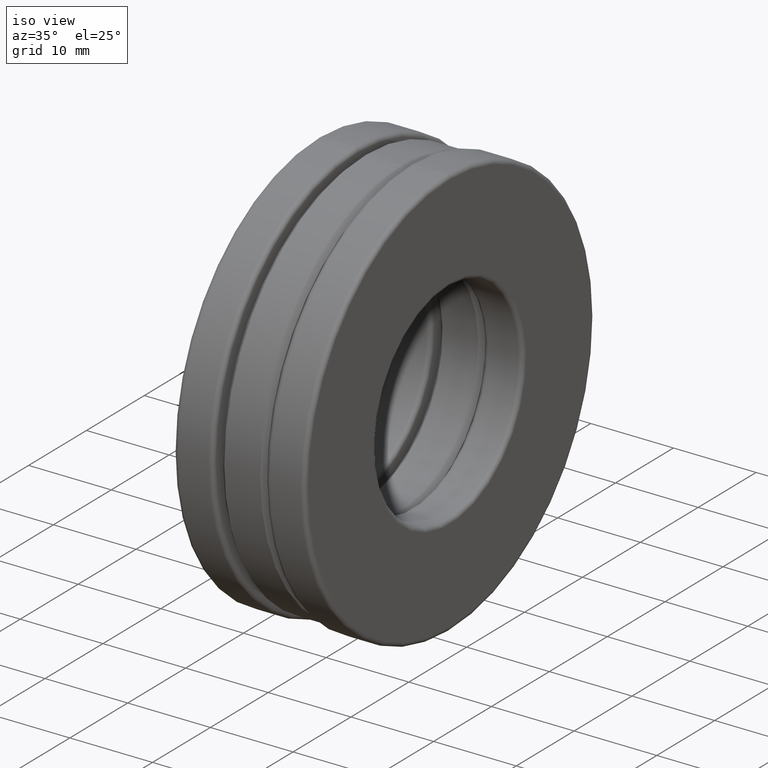
[diagram: clean part render]
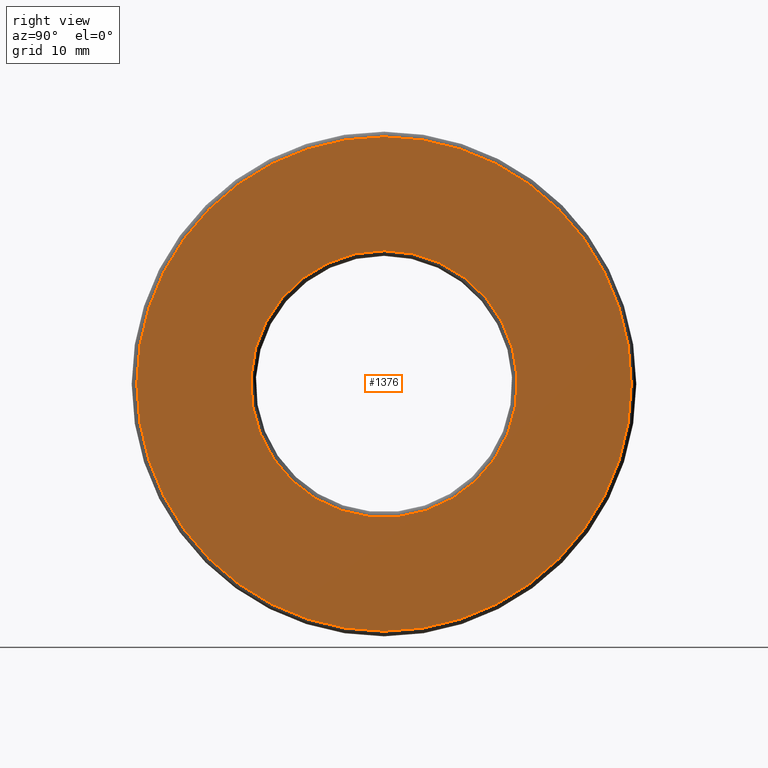
[diagram: tour spotlight — one face highlighted and labeled with its STEP entity id]
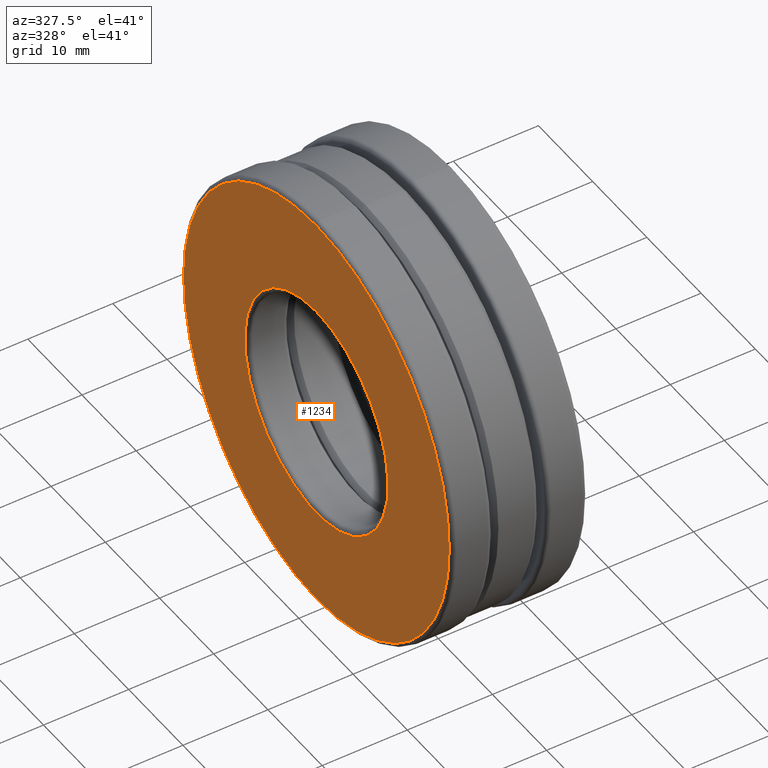
[diagram: tour spotlight — one face highlighted and labeled with its STEP entity id]
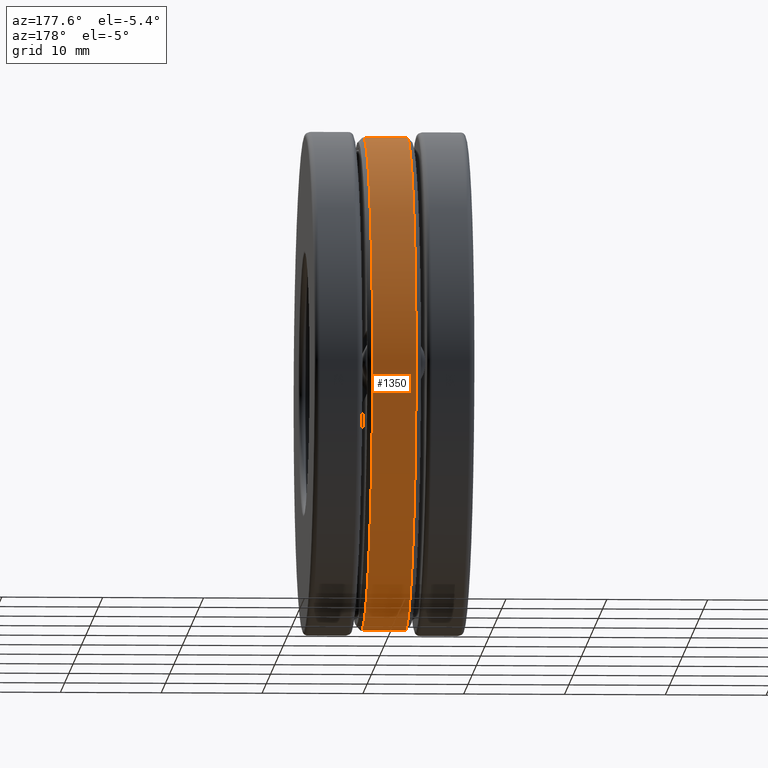
[diagram: tour spotlight — one face highlighted and labeled with its STEP entity id]
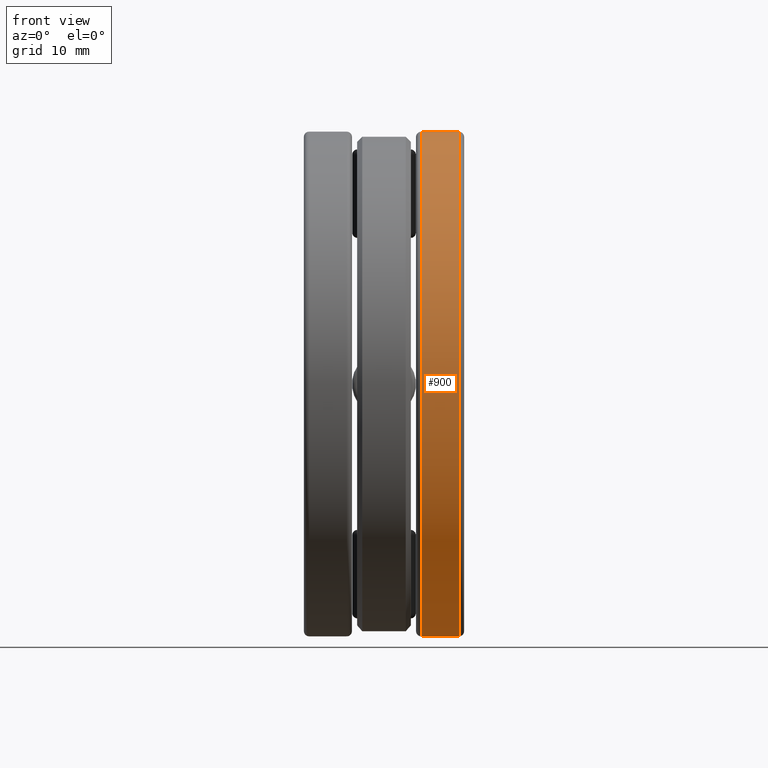
[diagram: tour spotlight — one face highlighted and labeled with its STEP entity id]
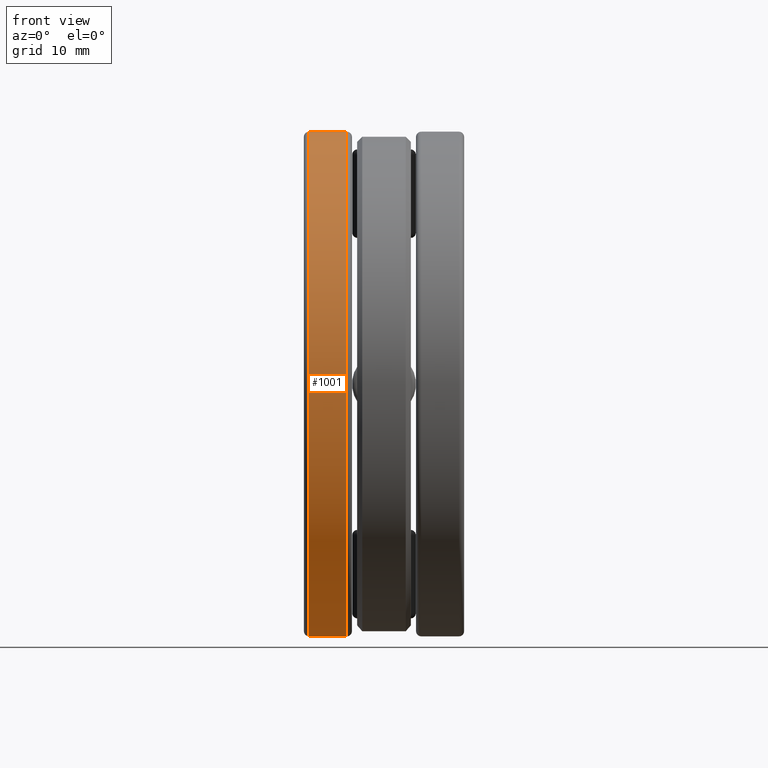
[diagram: tour spotlight — one face highlighted and labeled with its STEP entity id]
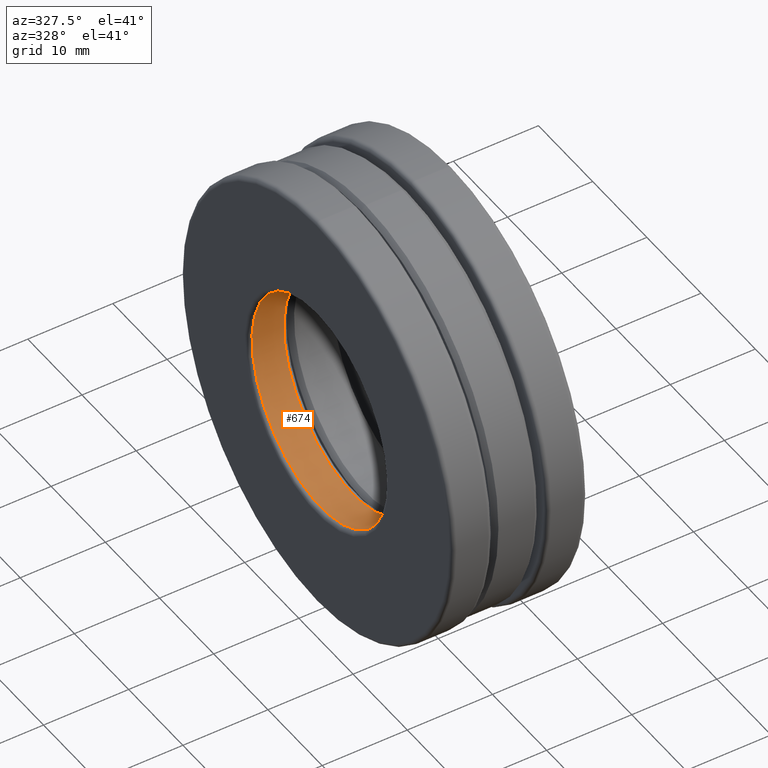
[diagram: tour spotlight — one face highlighted and labeled with its STEP entity id]
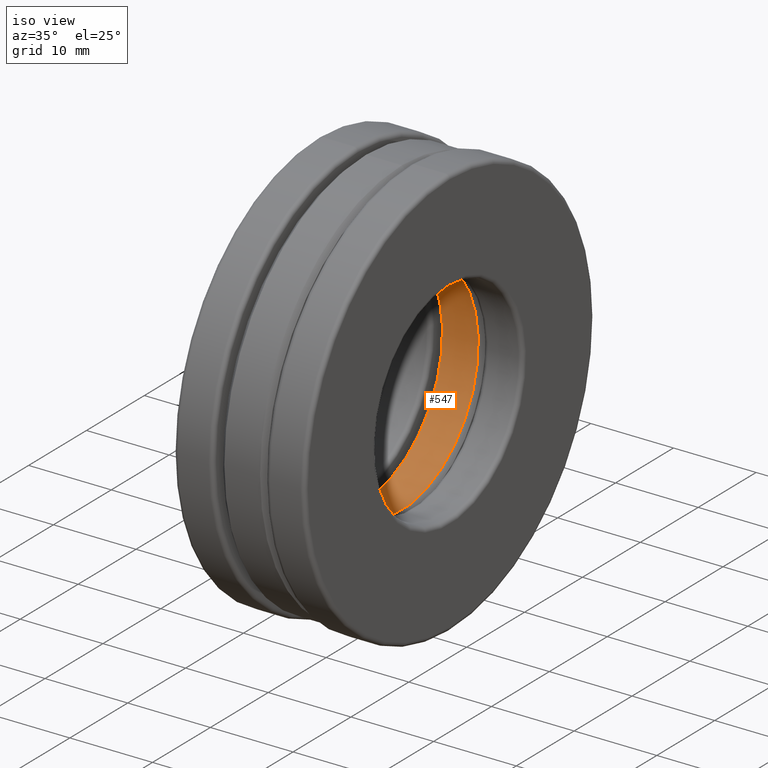
[diagram: tour spotlight — one face highlighted and labeled with its STEP entity id]
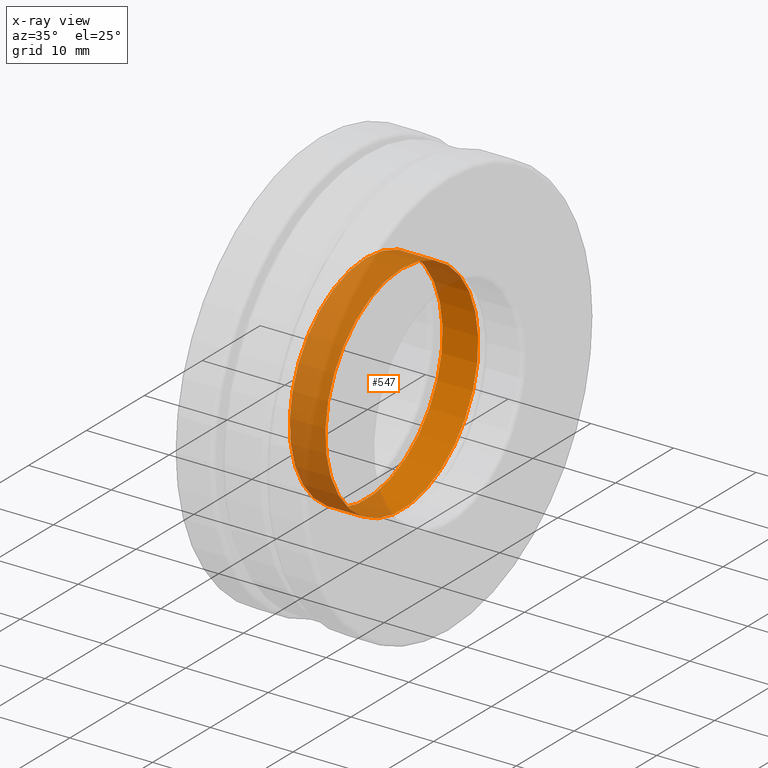
[diagram: x-ray of the same camera — body ghosted, this tour face saturated]
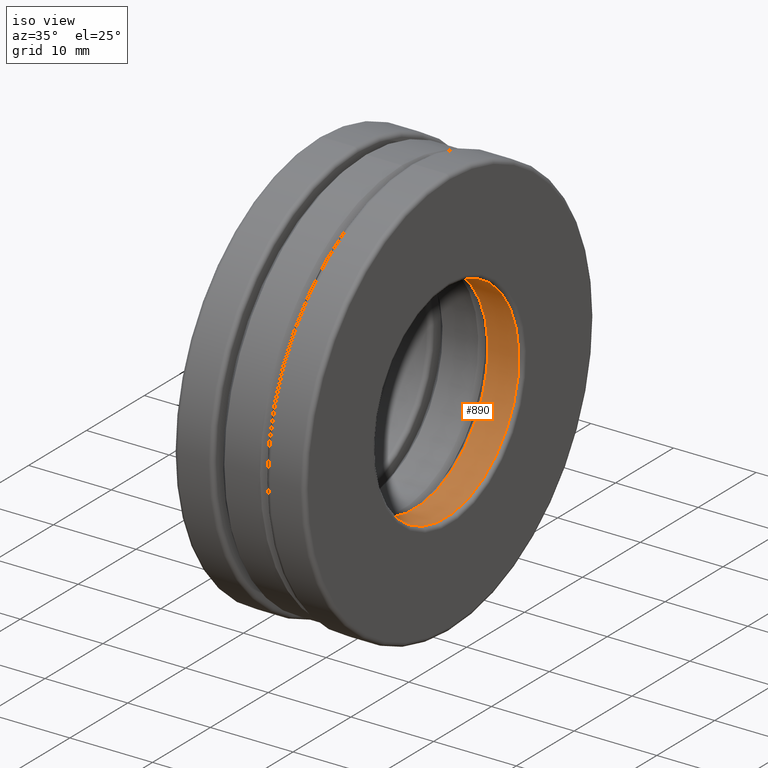
[diagram: tour spotlight — one face highlighted and labeled with its STEP entity id]
A machine part: a face-by-face anatomy tour. The part has 60 B-rep faces; the first image is the clean iso view, then the 8 largest visible faces are spotlighted one at a time (largest first), each with its STEP entity span.

Face 1 — right view, entity #1376. In plain terms, the highlighted planar face has unit normal (1, 0, 0).
Definition (entity closure, byte-faithful):
#46 = EDGE_CURVE ( 'NONE', #1109, #1109, #132, .T. ) ;
#103 = CIRCLE ( 'NONE', #381, 0.9643749999999999800 ) ;
#132 = CIRCLE ( 'NONE', #1355, 0.5199999999999999100 ) ;
#146 = FACE_OUTER_BOUND ( 'NONE', #793, .T. ) ;
#375 = DIRECTION ( 'NONE',  ( 0.0000000000000000000, 0.0000000000000000000, -1.000000000000000000 ) ) ;
#381 = AXIS2_PLACEMENT_3D ( 'NONE', #789, #1347, #677 ) ;
#395 = PLANE ( 'NONE',  #1212 ) ;
#570 = DIRECTION ( 'NONE',  ( -1.000000000000000000, -0.0000000000000000000, -0.0000000000000000000 ) ) ;
#677 = DIRECTION ( 'NONE',  ( 0.0000000000000000000, 0.0000000000000000000, 1.000000000000000000 ) ) ;
#744 = DIRECTION ( 'NONE',  ( 1.000000000000000000, 0.0000000000000000000, 0.0000000000000000000 ) ) ;
#789 = CARTESIAN_POINT ( 'NONE',  ( 0.3125000000000000000, 0.0000000000000000000, 0.0000000000000000000 ) ) ;
#793 = EDGE_LOOP ( 'NONE', ( #948 ) ) ;
#851 = CARTESIAN_POINT ( 'NONE',  ( 0.3125000000000000000, 0.0000000000000000000, 0.5199999999999999100 ) ) ;
#868 = EDGE_LOOP ( 'NONE', ( #1255 ) ) ;
#928 = CARTESIAN_POINT ( 'NONE',  ( 0.3125000000000000000, 0.0000000000000000000, 0.0000000000000000000 ) ) ;
#948 = ORIENTED_EDGE ( 'NONE', *, *, #1136, .F. ) ;
#981 = FACE_BOUND ( 'NONE', #868, .T. ) ;
#1040 = DIRECTION ( 'NONE',  ( 0.0000000000000000000, 0.0000000000000000000, 1.000000000000000000 ) ) ;
#1109 = VERTEX_POINT ( 'NONE', #851 ) ;
#1112 = CARTESIAN_POINT ( 'NONE',  ( 0.3125000000000000000, 0.0000000000000000000, 0.9643749999999999800 ) ) ;
#1136 = EDGE_CURVE ( 'NONE', #1380, #1380, #103, .T. ) ;
#1187 = CARTESIAN_POINT ( 'NONE',  ( 0.3125000000000000000, 0.0000000000000000000, 0.0000000000000000000 ) ) ;
#1212 = AXIS2_PLACEMENT_3D ( 'NONE', #1187, #744, #375 ) ;
#1255 = ORIENTED_EDGE ( 'NONE', *, *, #46, .T. ) ;
#1347 = DIRECTION ( 'NONE',  ( -1.000000000000000000, -0.0000000000000000000, -0.0000000000000000000 ) ) ;
#1355 = AXIS2_PLACEMENT_3D ( 'NONE', #928, #570, #1040 ) ;
#1376 = ADVANCED_FACE ( 'NONE', ( #981, #146 ), #395, .T. ) ;
#1380 = VERTEX_POINT ( 'NONE', #1112 ) ;

Face 2 — auxiliary view, entity #1234. In plain terms, the highlighted planar face has unit normal (1, 0, 0).
Definition (entity closure, byte-faithful):
#68 = CARTESIAN_POINT ( 'NONE',  ( -0.3125000000000000000, 0.0000000000000000000, 0.9643749999999998700 ) ) ;
#78 = ORIENTED_EDGE ( 'NONE', *, *, #1316, .T. ) ;
#148 = VERTEX_POINT ( 'NONE', #68 ) ;
#209 = PLANE ( 'NONE',  #1430 ) ;
#236 = CARTESIAN_POINT ( 'NONE',  ( -0.3125000000000000000, 4.802826993080635800E-017, 0.0000000000000000000 ) ) ;
#262 = CIRCLE ( 'NONE', #676, 0.9643749999999998700 ) ;
#310 = EDGE_LOOP ( 'NONE', ( #802 ) ) ;
#473 = DIRECTION ( 'NONE',  ( 0.0000000000000000000, 0.0000000000000000000, -1.000000000000000000 ) ) ;
#555 = EDGE_CURVE ( 'NONE', #809, #809, #560, .T. ) ;
#560 = CIRCLE ( 'NONE', #1352, 0.5200000000000000200 ) ;
#581 = DIRECTION ( 'NONE',  ( -1.000000000000000000, -0.0000000000000000000, -0.0000000000000000000 ) ) ;
#676 = AXIS2_PLACEMENT_3D ( 'NONE', #1138, #818, #1251 ) ;
#690 = DIRECTION ( 'NONE',  ( 1.000000000000000000, 0.0000000000000000000, 0.0000000000000000000 ) ) ;
#802 = ORIENTED_EDGE ( 'NONE', *, *, #555, .F. ) ;
#809 = VERTEX_POINT ( 'NONE', #1401 ) ;
#818 = DIRECTION ( 'NONE',  ( -1.000000000000000000, -0.0000000000000000000, -0.0000000000000000000 ) ) ;
#854 = EDGE_LOOP ( 'NONE', ( #78 ) ) ;
#871 = FACE_BOUND ( 'NONE', #310, .T. ) ;
#912 = CARTESIAN_POINT ( 'NONE',  ( -0.3125000000000000600, 0.0000000000000000000, 0.0000000000000000000 ) ) ;
#1138 = CARTESIAN_POINT ( 'NONE',  ( -0.3125000000000000000, 0.0000000000000000000, 0.0000000000000000000 ) ) ;
#1234 = ADVANCED_FACE ( 'NONE', ( #871, #1377 ), #209, .F. ) ;
#1251 = DIRECTION ( 'NONE',  ( 0.0000000000000000000, 0.0000000000000000000, 1.000000000000000000 ) ) ;
#1316 = EDGE_CURVE ( 'NONE', #148, #148, #262, .T. ) ;
#1352 = AXIS2_PLACEMENT_3D ( 'NONE', #912, #581, #1359 ) ;
#1359 = DIRECTION ( 'NONE',  ( 0.0000000000000000000, 0.0000000000000000000, 1.000000000000000000 ) ) ;
#1377 = FACE_OUTER_BOUND ( 'NONE', #854, .T. ) ;
#1401 = CARTESIAN_POINT ( 'NONE',  ( -0.3125000000000000600, 0.0000000000000000000, 0.5200000000000000200 ) ) ;
#1430 = AXIS2_PLACEMENT_3D ( 'NONE', #236, #690, #473 ) ;

Face 3 — auxiliary view, entity #1350. In plain terms, the highlighted cylindrical surface (bore or boss wall) has radius 24.4951 mm, axis along (-1, -0, -0).
Definition (entity closure, byte-faithful):
#178 = FACE_OUTER_BOUND ( 'NONE', #235, .T. ) ;
#185 = CARTESIAN_POINT ( 'NONE',  ( 0.08499999999999997800, 0.0000000000000000000, 0.9643749999999997600 ) ) ;
#212 = DIRECTION ( 'NONE',  ( -1.000000000000000000, -0.0000000000000000000, -0.0000000000000000000 ) ) ;
#235 = EDGE_LOOP ( 'NONE', ( #1312 ) ) ;
#326 = DIRECTION ( 'NONE',  ( 0.0000000000000000000, 0.0000000000000000000, 1.000000000000000000 ) ) ;
#359 = DIRECTION ( 'NONE',  ( 0.0000000000000000000, 0.0000000000000000000, 1.000000000000000000 ) ) ;
#360 = CARTESIAN_POINT ( 'NONE',  ( -0.08500000000000002000, 0.0000000000000000000, 0.0000000000000000000 ) ) ;
#386 = AXIS2_PLACEMENT_3D ( 'NONE', #360, #1023, #359 ) ;
#407 = EDGE_LOOP ( 'NONE', ( #729 ) ) ;
#449 = CYLINDRICAL_SURFACE ( 'NONE', #963, 0.9643749999999997600 ) ;
#462 = CARTESIAN_POINT ( 'NONE',  ( 0.0000000000000000000, 0.0000000000000000000, 0.0000000000000000000 ) ) ;
#589 = DIRECTION ( 'NONE',  ( 0.0000000000000000000, 0.0000000000000000000, 1.000000000000000000 ) ) ;
#608 = AXIS2_PLACEMENT_3D ( 'NONE', #887, #212, #326 ) ;
#729 = ORIENTED_EDGE ( 'NONE', *, *, #1335, .F. ) ;
#738 = VERTEX_POINT ( 'NONE', #185 ) ;
#750 = FACE_OUTER_BOUND ( 'NONE', #407, .T. ) ;
#785 = CIRCLE ( 'NONE', #386, 0.9643749999999997600 ) ;
#839 = CIRCLE ( 'NONE', #608, 0.9643749999999997600 ) ;
#859 = VERTEX_POINT ( 'NONE', #1200 ) ;
#887 = CARTESIAN_POINT ( 'NONE',  ( 0.08499999999999997800, 0.0000000000000000000, 0.0000000000000000000 ) ) ;
#963 = AXIS2_PLACEMENT_3D ( 'NONE', #462, #1035, #589 ) ;
#1023 = DIRECTION ( 'NONE',  ( -1.000000000000000000, -0.0000000000000000000, -0.0000000000000000000 ) ) ;
#1035 = DIRECTION ( 'NONE',  ( -1.000000000000000000, -0.0000000000000000000, -0.0000000000000000000 ) ) ;
#1050 = EDGE_CURVE ( 'NONE', #738, #738, #839, .T. ) ;
#1200 = CARTESIAN_POINT ( 'NONE',  ( -0.08500000000000002000, 0.0000000000000000000, 0.9643749999999997600 ) ) ;
#1312 = ORIENTED_EDGE ( 'NONE', *, *, #1050, .T. ) ;
#1335 = EDGE_CURVE ( 'NONE', #859, #859, #785, .T. ) ;
#1350 = ADVANCED_FACE ( 'NONE', ( #178, #750 ), #449, .T. ) ;

Face 4 — front view, entity #900. In plain terms, the highlighted cylindrical surface (bore or boss wall) has radius 25.0031 mm, axis along (-1, -0, -0).
Definition (entity closure, byte-faithful):
#1 = EDGE_CURVE ( 'NONE', #1189, #1189, #290, .T. ) ;
#99 = CARTESIAN_POINT ( 'NONE',  ( 0.1449999999999999600, 0.0000000000000000000, 0.0000000000000000000 ) ) ;
#140 = EDGE_CURVE ( 'NONE', #542, #542, #485, .T. ) ;
#181 = FACE_OUTER_BOUND ( 'NONE', #288, .T. ) ;
#288 = EDGE_LOOP ( 'NONE', ( #495 ) ) ;
#290 = CIRCLE ( 'NONE', #1393, 0.9843750000000001100 ) ;
#295 = AXIS2_PLACEMENT_3D ( 'NONE', #99, #439, #1125 ) ;
#439 = DIRECTION ( 'NONE',  ( -1.000000000000000000, -0.0000000000000000000, -0.0000000000000000000 ) ) ;
#485 = CIRCLE ( 'NONE', #295, 0.9843750000000001100 ) ;
#495 = ORIENTED_EDGE ( 'NONE', *, *, #1, .T. ) ;
#498 = CYLINDRICAL_SURFACE ( 'NONE', #525, 0.9843750000000001100 ) ;
#510 = CARTESIAN_POINT ( 'NONE',  ( 0.1449999999999999600, 0.0000000000000000000, 0.9843750000000001100 ) ) ;
#525 = AXIS2_PLACEMENT_3D ( 'NONE', #651, #543, #1213 ) ;
#542 = VERTEX_POINT ( 'NONE', #510 ) ;
#543 = DIRECTION ( 'NONE',  ( -1.000000000000000000, -0.0000000000000000000, -0.0000000000000000000 ) ) ;
#553 = ORIENTED_EDGE ( 'NONE', *, *, #140, .F. ) ;
#651 = CARTESIAN_POINT ( 'NONE',  ( 0.0000000000000000000, 0.0000000000000000000, 0.0000000000000000000 ) ) ;
#688 = DIRECTION ( 'NONE',  ( 0.0000000000000000000, 0.0000000000000000000, 1.000000000000000000 ) ) ;
#900 = ADVANCED_FACE ( 'NONE', ( #1286, #181 ), #498, .T. ) ;
#925 = CARTESIAN_POINT ( 'NONE',  ( 0.2925000000000000400, 0.0000000000000000000, 0.0000000000000000000 ) ) ;
#1022 = DIRECTION ( 'NONE',  ( -1.000000000000000000, -0.0000000000000000000, -0.0000000000000000000 ) ) ;
#1060 = EDGE_LOOP ( 'NONE', ( #553 ) ) ;
#1125 = DIRECTION ( 'NONE',  ( 0.0000000000000000000, 0.0000000000000000000, 1.000000000000000000 ) ) ;
#1189 = VERTEX_POINT ( 'NONE', #1298 ) ;
#1213 = DIRECTION ( 'NONE',  ( 0.0000000000000000000, 0.0000000000000000000, 1.000000000000000000 ) ) ;
#1286 = FACE_OUTER_BOUND ( 'NONE', #1060, .T. ) ;
#1298 = CARTESIAN_POINT ( 'NONE',  ( 0.2925000000000000400, 0.0000000000000000000, 0.9843750000000001100 ) ) ;
#1393 = AXIS2_PLACEMENT_3D ( 'NONE', #925, #1022, #688 ) ;

Face 5 — front view, entity #1001. In plain terms, the highlighted cylindrical surface (bore or boss wall) has radius 25.0031 mm, axis along (-1, -0, -0).
Definition (entity closure, byte-faithful):
#58 = CARTESIAN_POINT ( 'NONE',  ( 0.0000000000000000000, 0.0000000000000000000, 0.0000000000000000000 ) ) ;
#162 = CIRCLE ( 'NONE', #327, 0.9843749999999997800 ) ;
#210 = DIRECTION ( 'NONE',  ( 0.0000000000000000000, 0.0000000000000000000, 1.000000000000000000 ) ) ;
#213 = EDGE_LOOP ( 'NONE', ( #388 ) ) ;
#277 = CYLINDRICAL_SURFACE ( 'NONE', #340, 0.9843749999999997800 ) ;
#327 = AXIS2_PLACEMENT_3D ( 'NONE', #387, #970, #1174 ) ;
#328 = CARTESIAN_POINT ( 'NONE',  ( -0.2925000000000000400, 0.0000000000000000000, 0.0000000000000000000 ) ) ;
#340 = AXIS2_PLACEMENT_3D ( 'NONE', #58, #1421, #1104 ) ;
#385 = CIRCLE ( 'NONE', #849, 0.9843749999999997800 ) ;
#387 = CARTESIAN_POINT ( 'NONE',  ( -0.1449999999999999900, 0.0000000000000000000, 0.0000000000000000000 ) ) ;
#388 = ORIENTED_EDGE ( 'NONE', *, *, #779, .T. ) ;
#416 = EDGE_CURVE ( 'NONE', #1326, #1326, #385, .T. ) ;
#600 = VERTEX_POINT ( 'NONE', #998 ) ;
#620 = CARTESIAN_POINT ( 'NONE',  ( -0.2925000000000000400, 0.0000000000000000000, 0.9843749999999997800 ) ) ;
#779 = EDGE_CURVE ( 'NONE', #600, #600, #162, .T. ) ;
#849 = AXIS2_PLACEMENT_3D ( 'NONE', #328, #1209, #210 ) ;
#913 = FACE_OUTER_BOUND ( 'NONE', #1389, .T. ) ;
#970 = DIRECTION ( 'NONE',  ( -1.000000000000000000, -0.0000000000000000000, -0.0000000000000000000 ) ) ;
#998 = CARTESIAN_POINT ( 'NONE',  ( -0.1449999999999999900, 0.0000000000000000000, 0.9843749999999997800 ) ) ;
#1001 = ADVANCED_FACE ( 'NONE', ( #913, #1203 ), #277, .T. ) ;
#1104 = DIRECTION ( 'NONE',  ( 0.0000000000000000000, 0.0000000000000000000, 1.000000000000000000 ) ) ;
#1174 = DIRECTION ( 'NONE',  ( 0.0000000000000000000, 0.0000000000000000000, 1.000000000000000000 ) ) ;
#1203 = FACE_OUTER_BOUND ( 'NONE', #213, .T. ) ;
#1209 = DIRECTION ( 'NONE',  ( -1.000000000000000000, -0.0000000000000000000, -0.0000000000000000000 ) ) ;
#1267 = ORIENTED_EDGE ( 'NONE', *, *, #416, .F. ) ;
#1326 = VERTEX_POINT ( 'NONE', #620 ) ;
#1389 = EDGE_LOOP ( 'NONE', ( #1267 ) ) ;
#1421 = DIRECTION ( 'NONE',  ( -1.000000000000000000, -0.0000000000000000000, -0.0000000000000000000 ) ) ;

Face 6 — auxiliary view, entity #674. In plain terms, the highlighted cylindrical surface (bore or boss wall) has radius 12.7 mm, axis along (-1, -0, -0).
Definition (entity closure, byte-faithful):
#83 = CIRCLE ( 'NONE', #876, 0.5000000000000000000 ) ;
#115 = ORIENTED_EDGE ( 'NONE', *, *, #712, .T. ) ;
#172 = DIRECTION ( 'NONE',  ( 0.0000000000000000000, 0.0000000000000000000, 1.000000000000000000 ) ) ;
#264 = VERTEX_POINT ( 'NONE', #1313 ) ;
#289 = CARTESIAN_POINT ( 'NONE',  ( -0.1450000000000000500, 0.0000000000000000000, 0.0000000000000000000 ) ) ;
#413 = CIRCLE ( 'NONE', #993, 0.5000000000000000000 ) ;
#546 = CARTESIAN_POINT ( 'NONE',  ( -0.2925000000000000400, 0.0000000000000000000, 0.5000000000000000000 ) ) ;
#674 = ADVANCED_FACE ( 'NONE', ( #1105, #1127 ), #1426, .F. ) ;
#712 = EDGE_CURVE ( 'NONE', #1261, #1261, #83, .T. ) ;
#838 = ORIENTED_EDGE ( 'NONE', *, *, #1471, .F. ) ;
#846 = DIRECTION ( 'NONE',  ( -1.000000000000000000, -0.0000000000000000000, -0.0000000000000000000 ) ) ;
#848 = DIRECTION ( 'NONE',  ( -1.000000000000000000, -0.0000000000000000000, -0.0000000000000000000 ) ) ;
#876 = AXIS2_PLACEMENT_3D ( 'NONE', #974, #848, #172 ) ;
#954 = EDGE_LOOP ( 'NONE', ( #115 ) ) ;
#974 = CARTESIAN_POINT ( 'NONE',  ( -0.2925000000000000400, 0.0000000000000000000, 0.0000000000000000000 ) ) ;
#993 = AXIS2_PLACEMENT_3D ( 'NONE', #289, #846, #1069 ) ;
#1055 = DIRECTION ( 'NONE',  ( -1.000000000000000000, -0.0000000000000000000, -0.0000000000000000000 ) ) ;
#1061 = EDGE_LOOP ( 'NONE', ( #838 ) ) ;
#1069 = DIRECTION ( 'NONE',  ( 0.0000000000000000000, 0.0000000000000000000, 1.000000000000000000 ) ) ;
#1105 = FACE_OUTER_BOUND ( 'NONE', #954, .T. ) ;
#1127 = FACE_OUTER_BOUND ( 'NONE', #1061, .T. ) ;
#1155 = CARTESIAN_POINT ( 'NONE',  ( 0.0000000000000000000, 0.0000000000000000000, 0.0000000000000000000 ) ) ;
#1261 = VERTEX_POINT ( 'NONE', #546 ) ;
#1293 = AXIS2_PLACEMENT_3D ( 'NONE', #1155, #1055, #1383 ) ;
#1313 = CARTESIAN_POINT ( 'NONE',  ( -0.1450000000000000500, 0.0000000000000000000, 0.5000000000000000000 ) ) ;
#1383 = DIRECTION ( 'NONE',  ( 0.0000000000000000000, 0.0000000000000000000, 1.000000000000000000 ) ) ;
#1426 = CYLINDRICAL_SURFACE ( 'NONE', #1293, 0.5000000000000000000 ) ;
#1471 = EDGE_CURVE ( 'NONE', #264, #264, #413, .T. ) ;

Face 7 — iso view, entity #547. An x-ray twin of the same camera follows (body ghosted, this face saturated) — the face is partly hidden behind the body. In plain terms, the highlighted cylindrical surface (bore or boss wall) has radius 13.208 mm, axis along (-1, -0, -0).
Definition (entity closure, byte-faithful):
#25 = CIRCLE ( 'NONE', #429, 0.5200000000000000200 ) ;
#44 = AXIS2_PLACEMENT_3D ( 'NONE', #301, #724, #155 ) ;
#155 = DIRECTION ( 'NONE',  ( 0.0000000000000000000, 0.0000000000000000000, 1.000000000000000000 ) ) ;
#166 = VERTEX_POINT ( 'NONE', #877 ) ;
#203 = VERTEX_POINT ( 'NONE', #527 ) ;
#301 = CARTESIAN_POINT ( 'NONE',  ( 0.08500000000000004800, 0.0000000000000000000, 0.0000000000000000000 ) ) ;
#330 = ORIENTED_EDGE ( 'NONE', *, *, #783, .F. ) ;
#429 = AXIS2_PLACEMENT_3D ( 'NONE', #901, #455, #1131 ) ;
#455 = DIRECTION ( 'NONE',  ( -1.000000000000000000, -0.0000000000000000000, -0.0000000000000000000 ) ) ;
#457 = CARTESIAN_POINT ( 'NONE',  ( 0.0000000000000000000, 0.0000000000000000000, 0.0000000000000000000 ) ) ;
#527 = CARTESIAN_POINT ( 'NONE',  ( 0.08500000000000004800, 0.0000000000000000000, 0.5200000000000000200 ) ) ;
#547 = ADVANCED_FACE ( 'NONE', ( #1206, #1108 ), #808, .F. ) ;
#606 = ORIENTED_EDGE ( 'NONE', *, *, #1031, .T. ) ;
#724 = DIRECTION ( 'NONE',  ( -1.000000000000000000, -0.0000000000000000000, -0.0000000000000000000 ) ) ;
#783 = EDGE_CURVE ( 'NONE', #203, #203, #1002, .T. ) ;
#806 = DIRECTION ( 'NONE',  ( 0.0000000000000000000, 0.0000000000000000000, 1.000000000000000000 ) ) ;
#808 = CYLINDRICAL_SURFACE ( 'NONE', #1107, 0.5200000000000000200 ) ;
#877 = CARTESIAN_POINT ( 'NONE',  ( -0.08499999999999995100, 0.0000000000000000000, 0.5200000000000000200 ) ) ;
#901 = CARTESIAN_POINT ( 'NONE',  ( -0.08499999999999995100, 0.0000000000000000000, 0.0000000000000000000 ) ) ;
#904 = EDGE_LOOP ( 'NONE', ( #606 ) ) ;
#1002 = CIRCLE ( 'NONE', #44, 0.5200000000000000200 ) ;
#1031 = EDGE_CURVE ( 'NONE', #166, #166, #25, .T. ) ;
#1091 = EDGE_LOOP ( 'NONE', ( #330 ) ) ;
#1107 = AXIS2_PLACEMENT_3D ( 'NONE', #457, #1348, #806 ) ;
#1108 = FACE_OUTER_BOUND ( 'NONE', #904, .T. ) ;
#1131 = DIRECTION ( 'NONE',  ( 0.0000000000000000000, 0.0000000000000000000, 1.000000000000000000 ) ) ;
#1206 = FACE_OUTER_BOUND ( 'NONE', #1091, .T. ) ;
#1348 = DIRECTION ( 'NONE',  ( -1.000000000000000000, -0.0000000000000000000, -0.0000000000000000000 ) ) ;

Face 8 — iso view, entity #890. In plain terms, the highlighted cylindrical surface (bore or boss wall) has radius 12.7 mm, axis along (-1, -0, -0).
Definition (entity closure, byte-faithful):
#32 = CARTESIAN_POINT ( 'NONE',  ( 0.0000000000000000000, 0.0000000000000000000, 0.0000000000000000000 ) ) ;
#56 = CARTESIAN_POINT ( 'NONE',  ( 0.1450000000000000500, 0.0000000000000000000, 0.5000000000000000000 ) ) ;
#65 = DIRECTION ( 'NONE',  ( 0.0000000000000000000, 0.0000000000000000000, 1.000000000000000000 ) ) ;
#100 = ORIENTED_EDGE ( 'NONE', *, *, #1008, .T. ) ;
#145 = AXIS2_PLACEMENT_3D ( 'NONE', #1310, #758, #65 ) ;
#196 = EDGE_LOOP ( 'NONE', ( #100 ) ) ;
#325 = CARTESIAN_POINT ( 'NONE',  ( 0.2925000000000000400, 0.0000000000000000000, 0.5000000000000000000 ) ) ;
#345 = ORIENTED_EDGE ( 'NONE', *, *, #656, .F. ) ;
#374 = DIRECTION ( 'NONE',  ( -1.000000000000000000, -0.0000000000000000000, -0.0000000000000000000 ) ) ;
#390 = DIRECTION ( 'NONE',  ( -1.000000000000000000, -0.0000000000000000000, -0.0000000000000000000 ) ) ;
#466 = FACE_OUTER_BOUND ( 'NONE', #814, .T. ) ;
#610 = DIRECTION ( 'NONE',  ( 0.0000000000000000000, 0.0000000000000000000, 1.000000000000000000 ) ) ;
#612 = CIRCLE ( 'NONE', #145, 0.5000000000000000000 ) ;
#621 = DIRECTION ( 'NONE',  ( 0.0000000000000000000, 0.0000000000000000000, 1.000000000000000000 ) ) ;
#629 = VERTEX_POINT ( 'NONE', #325 ) ;
#656 = EDGE_CURVE ( 'NONE', #629, #629, #1344, .T. ) ;
#758 = DIRECTION ( 'NONE',  ( -1.000000000000000000, -0.0000000000000000000, -0.0000000000000000000 ) ) ;
#768 = FACE_OUTER_BOUND ( 'NONE', #196, .T. ) ;
#770 = VERTEX_POINT ( 'NONE', #56 ) ;
#814 = EDGE_LOOP ( 'NONE', ( #345 ) ) ;
#890 = ADVANCED_FACE ( 'NONE', ( #768, #466 ), #1379, .F. ) ;
#1008 = EDGE_CURVE ( 'NONE', #770, #770, #612, .T. ) ;
#1028 = AXIS2_PLACEMENT_3D ( 'NONE', #1162, #374, #610 ) ;
#1117 = AXIS2_PLACEMENT_3D ( 'NONE', #32, #390, #621 ) ;
#1162 = CARTESIAN_POINT ( 'NONE',  ( 0.2925000000000000400, 0.0000000000000000000, 0.0000000000000000000 ) ) ;
#1310 = CARTESIAN_POINT ( 'NONE',  ( 0.1450000000000000500, 0.0000000000000000000, 0.0000000000000000000 ) ) ;
#1344 = CIRCLE ( 'NONE', #1028, 0.5000000000000000000 ) ;
#1379 = CYLINDRICAL_SURFACE ( 'NONE', #1117, 0.5000000000000000000 ) ;